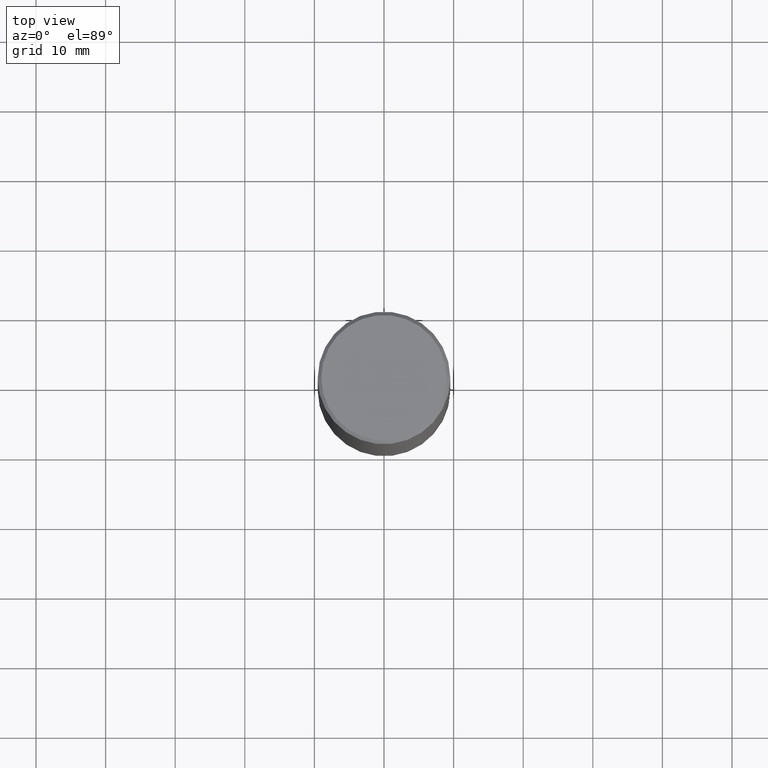
[diagram: clean part render]
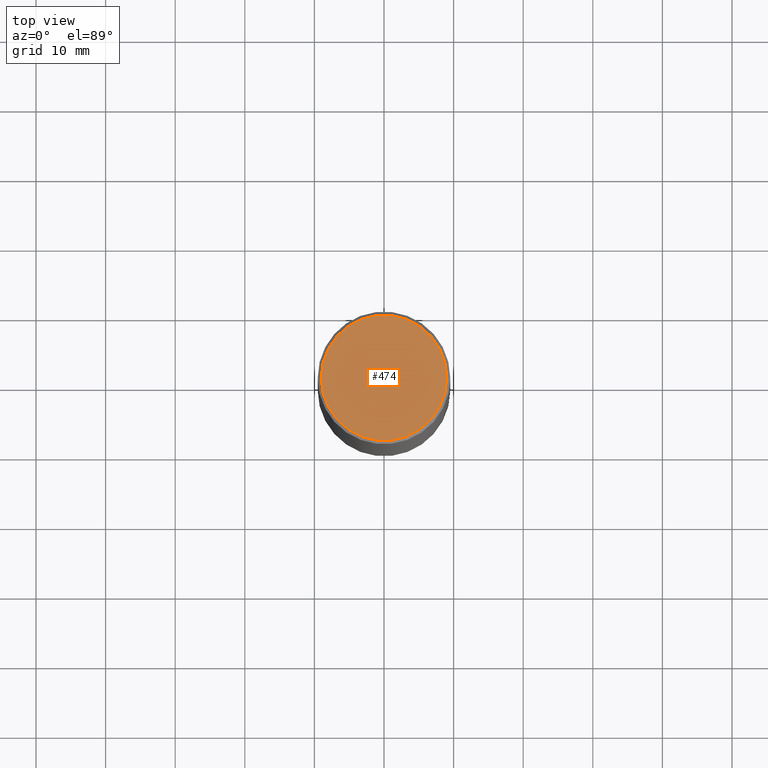
[diagram: same view with one face highlighted and labeled with its STEP entity id]
A machine part, top view. The second image highlights one B-rep face of the part: STEP entity #474.
In plain terms, the highlighted planar face has unit normal (0, -0, -1).
Its self-contained STEP definition (entity closure, byte-faithful):
#5 = VERTEX_POINT ( 'NONE', #72 ) ;
#49 = ORIENTED_EDGE ( 'NONE', *, *, #52, .T. ) ;
#52 = EDGE_CURVE ( 'NONE', #373, #5, #138, .T. ) ;
#72 = CARTESIAN_POINT ( 'NONE',  ( 0.3549999999999989275, -2.538996582575033948E-15, 4.268512490117958041E-18 ) ) ;
#84 = CARTESIAN_POINT ( 'NONE',  ( -0.3549999999999989275, 2.513866563967048758E-15, 4.268512490082953109E-18 ) ) ;
#102 = AXIS2_PLACEMENT_3D ( 'NONE', #331, #192, #413 ) ;
#138 = CIRCLE ( 'NONE', #439, 0.3549999999999989275 ) ;
#140 = DIRECTION ( 'NONE',  ( -2.445468806185136597E-29, 3.491481338843145583E-15, 1.000000000000000000 ) ) ;
#178 = EDGE_LOOP ( 'NONE', ( #49, #419 ) ) ;
#187 = FACE_OUTER_BOUND ( 'NONE', #178, .T. ) ;
#192 = DIRECTION ( 'NONE',  ( -2.445468806185136597E-29, 3.491481338843145583E-15, 1.000000000000000000 ) ) ;
#213 = CARTESIAN_POINT ( 'NONE',  ( -1.043851414335219820E-46, 1.490343170380447200E-32, 4.268512490100411279E-18 ) ) ;
#293 = DIRECTION ( 'NONE',  ( 1.000000000000000000, -6.982962677686266711E-15, 4.876231632512002757E-29 ) ) ;
#295 = DIRECTION ( 'NONE',  ( -1.000000000000000000, 6.982962677686265922E-15, -4.876176775795935793E-29 ) ) ;
#304 = CIRCLE ( 'NONE', #102, 0.3549999999999989275 ) ;
#331 = CARTESIAN_POINT ( 'NONE',  ( -1.043851414335219820E-46, 1.490343170380447200E-32, 4.268512490100411279E-18 ) ) ;
#335 = PLANE ( 'NONE',  #386 ) ;
#373 = VERTEX_POINT ( 'NONE', #84 ) ;
#386 = AXIS2_PLACEMENT_3D ( 'NONE', #409, #408, #295 ) ;
#408 = DIRECTION ( 'NONE',  ( 2.438088387897960049E-29, -3.491481338843145188E-15, -1.000000000000000000 ) ) ;
#409 = CARTESIAN_POINT ( 'NONE',  ( 2.478951750578617109E-15, 0.3549999999999989275, -1.237341619044262680E-15 ) ) ;
#413 = DIRECTION ( 'NONE',  ( 1.000000000000000000, -6.982962677686266711E-15, 4.876231632512002757E-29 ) ) ;
#419 = ORIENTED_EDGE ( 'NONE', *, *, #424, .T. ) ;
#424 = EDGE_CURVE ( 'NONE', #5, #373, #304, .T. ) ;
#439 = AXIS2_PLACEMENT_3D ( 'NONE', #213, #140, #293 ) ;
#474 = ADVANCED_FACE ( 'NONE', ( #187 ), #335, .F. ) ;